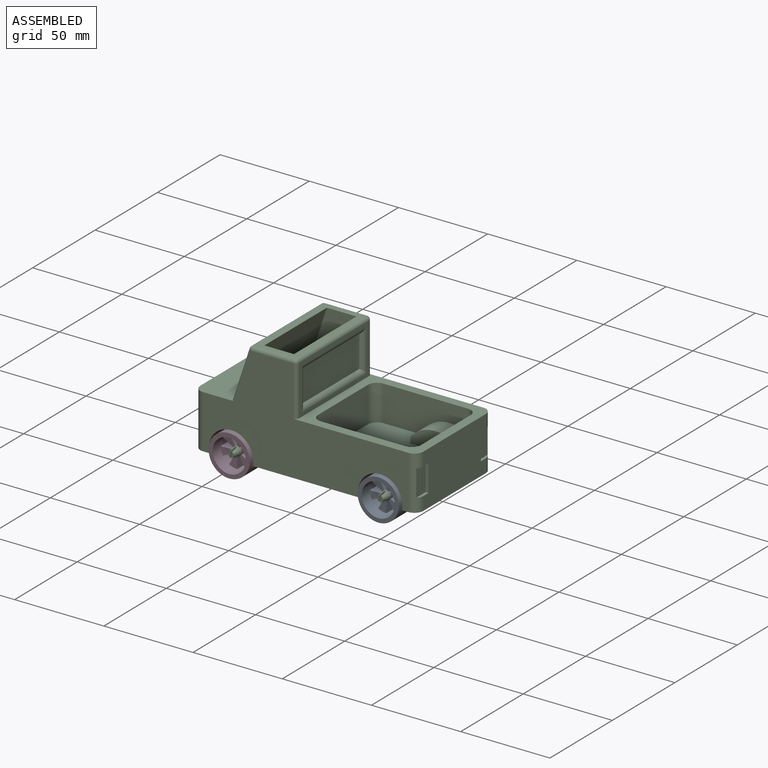
[diagram: assembled view]
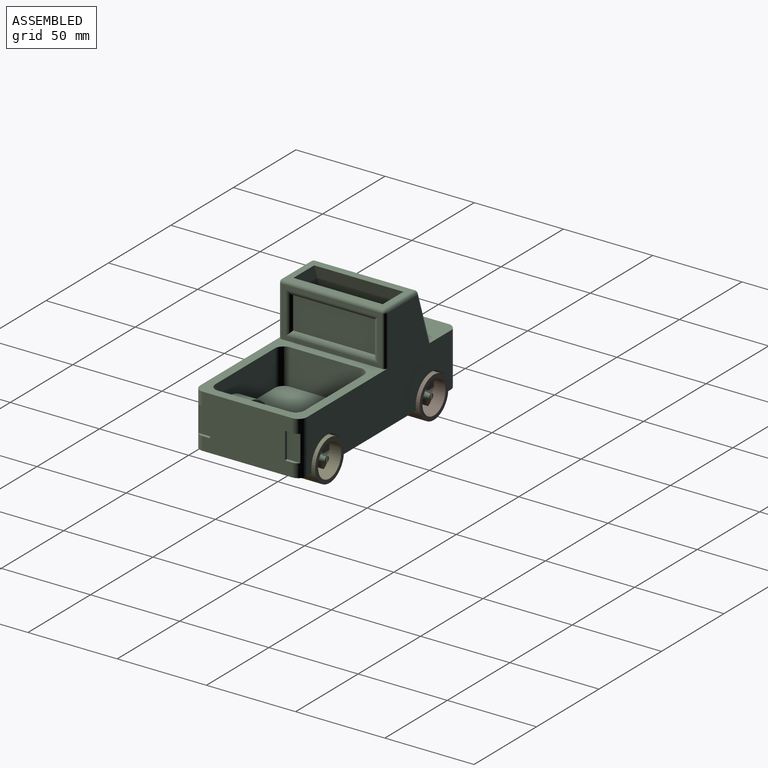
[diagram: assembled view, second angle]
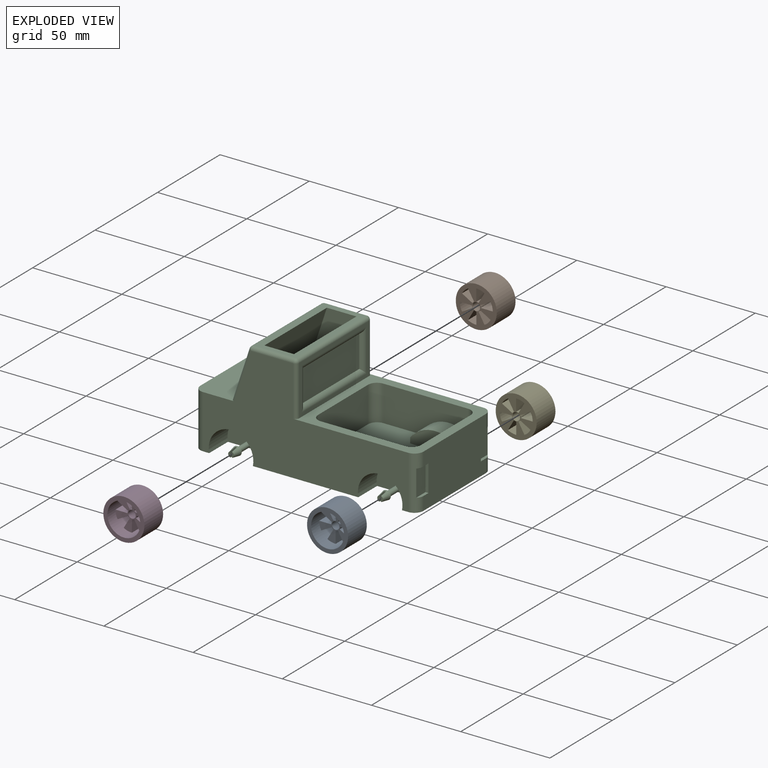
[diagram: exploded view]
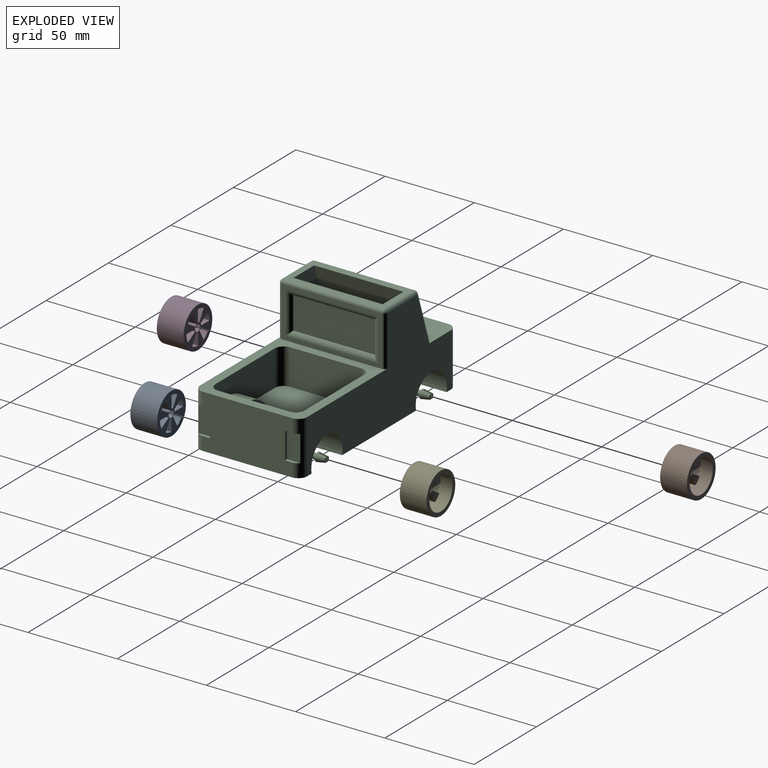
[diagram: exploded view, second angle]
ASSEMBLY  parts=5 mates=4
PART A: 25 faces, bbox 23x23x15 mm
  f0: cylinder r=11.5mm len=23mm, axis (0,0,-1), area 1083.8mm2, adj f2,f3
  f1: cylinder r=2.1mm len=8.25mm, axis (0,0,-1), area 108.9mm2, adj f22,f24
  f2: plane 23x23mm, normal (0,0,1), area 272.3mm2, adj f0,f4,f5,f6,f7,f8,f9,f10
  f3: plane 23x23mm, normal (0,0,-1), area 146.7mm2, adj f0,f23
  f4: cylinder r=2.5mm len=8.5mm, axis (0,0,1), area 11.2mm2, adj f2,f5,f6,f22
  f5: plane 8.5x6.75mm, normal (0,1,0), area 57.4mm2, adj f2,f4,f22,f23
  f6: plane 8.5x5.83mm, normal (0.5,-0.86,0), area 57.4mm2, adj f2,f4,f22,f23
  f7: cylinder r=2.5mm len=8.5mm, axis (0,0,1), area 11.2mm2, adj f2,f8,f9,f22
  f8: plane 8.5x5.85mm, normal (-0.87,0.5,0), area 57.4mm2, adj f2,f7,f22,f23
  f9: plane 8.5x6.75mm, normal (1,0.01,0), area 57.4mm2, adj f2,f7,f22,f23
  f10: cylinder r=2.5mm len=8.5mm, axis (0,0,1), area 11.2mm2, adj f2,f11,f12,f22
  f11: plane 8.5x5.85mm, normal (-0.87,-0.5,0), area 57.4mm2, adj f2,f10,f22,f23
  f12: plane 8.5x5.86mm, normal (0.5,0.87,0), area 57.4mm2, adj f2,f10,f22,f23
  f13: cylinder r=2.5mm len=8.5mm, axis (0,0,1), area 11.2mm2, adj f2,f14,f15,f22
  f14: plane 8.5x6.75mm, normal (0,-1,0), area 57.4mm2, adj f2,f13,f22,f23
  f15: plane 8.5x5.83mm, normal (-0.5,0.86,0), area 57.4mm2, adj f2,f13,f22,f23
  f16: cylinder r=2.5mm len=8.5mm, axis (0,0,1), area 11.2mm2, adj f2,f17,f18,f22
  f17: plane 8.5x5.85mm, normal (0.87,-0.5,0), area 57.4mm2, adj f2,f16,f22,f23
  f18: plane 8.5x6.75mm, normal (-1,-0.01,0), area 57.4mm2, adj f2,f16,f22,f23
  f19: cylinder r=2.5mm len=8.5mm, axis (0,0,1), area 11.2mm2, adj f2,f20,f21,f22
  f20: plane 8.5x5.85mm, normal (0.87,0.5,0), area 57.4mm2, adj f2,f19,f22,f23
  f21: plane 8.5x5.86mm, normal (-0.5,-0.87,0), area 57.4mm2, adj f2,f19,f22,f23
  f22: plane 18.5x18.5mm, normal (0,0,-1), area 129.2mm2, adj f1,f4,f5,f6,f7,f8,f9,f10
  f23: cylinder r=9.25mm len=18.5mm, axis (0,0,-1), area 627.2mm2, adj f2,f3,f5,f6,f8,f9,f11,f12
  f24: torus R=2.35mm, axis (0,0,-1), area 5.4mm2, adj f1,f2
PART B: 25 faces, bbox 23x23x15 mm
  f0: cylinder r=11.5mm len=23mm, axis (0,0,-1), area 1083.8mm2, adj f2,f3
  f1: cylinder r=2.1mm len=8.25mm, axis (0,0,-1), area 108.9mm2, adj f22,f24
  f2: plane 23x23mm, normal (0,0,1), area 272.3mm2, adj f0,f4,f5,f6,f7,f8,f9,f10
  f3: plane 23x23mm, normal (0,0,-1), area 146.7mm2, adj f0,f23
  f4: cylinder r=2.5mm len=8.5mm, axis (0,0,1), area 11.2mm2, adj f2,f5,f6,f22
  f5: plane 8.5x6.75mm, normal (0,1,0), area 57.4mm2, adj f2,f4,f22,f23
  f6: plane 8.5x5.83mm, normal (0.5,-0.86,0), area 57.4mm2, adj f2,f4,f22,f23
  f7: cylinder r=2.5mm len=8.5mm, axis (0,0,1), area 11.2mm2, adj f2,f8,f9,f22
  f8: plane 8.5x5.85mm, normal (-0.87,0.5,0), area 57.4mm2, adj f2,f7,f22,f23
  f9: plane 8.5x6.75mm, normal (1,0.01,0), area 57.4mm2, adj f2,f7,f22,f23
  f10: cylinder r=2.5mm len=8.5mm, axis (0,0,1), area 11.2mm2, adj f2,f11,f12,f22
  f11: plane 8.5x5.85mm, normal (-0.87,-0.5,0), area 57.4mm2, adj f2,f10,f22,f23
  f12: plane 8.5x5.86mm, normal (0.5,0.87,0), area 57.4mm2, adj f2,f10,f22,f23
  f13: cylinder r=2.5mm len=8.5mm, axis (0,0,1), area 11.2mm2, adj f2,f14,f15,f22
  f14: plane 8.5x6.75mm, normal (0,-1,0), area 57.4mm2, adj f2,f13,f22,f23
  f15: plane 8.5x5.83mm, normal (-0.5,0.86,0), area 57.4mm2, adj f2,f13,f22,f23
  f16: cylinder r=2.5mm len=8.5mm, axis (0,0,1), area 11.2mm2, adj f2,f17,f18,f22
  f17: plane 8.5x5.85mm, normal (0.87,-0.5,0), area 57.4mm2, adj f2,f16,f22,f23
  f18: plane 8.5x6.75mm, normal (-1,-0.01,0), area 57.4mm2, adj f2,f16,f22,f23
  f19: cylinder r=2.5mm len=8.5mm, axis (0,0,1), area 11.2mm2, adj f2,f20,f21,f22
  f20: plane 8.5x5.85mm, normal (0.87,0.5,0), area 57.4mm2, adj f2,f19,f22,f23
  f21: plane 8.5x5.86mm, normal (-0.5,-0.87,0), area 57.4mm2, adj f2,f19,f22,f23
  f22: plane 18.5x18.5mm, normal (0,0,-1), area 129.2mm2, adj f1,f4,f5,f6,f7,f8,f9,f10
  f23: cylinder r=9.25mm len=18.5mm, axis (0,0,-1), area 627.2mm2, adj f2,f3,f5,f6,f8,f9,f11,f12
  f24: torus R=2.35mm, axis (0,0,-1), area 5.4mm2, adj f1,f2
PART C: 126 faces, bbox 125.1x60.1x60.1 mm
  f0: plane 56x23.39mm, normal (0,0,1), area 481.5mm2, adj f64,f69,f70,f74,f120,f121,f124,f125
  f1: plane 50x30mm, normal (1,0,0), area 1380mm2, adj f2,f8,f11,f61,f112,f113,f114,f116
  f2: cylinder r=5mm len=30mm, axis (0,0,-1), area 176.5mm2, adj f1,f8,f11,f15,f112,f114,f115
  f3: plane 57.52x50mm, normal (0,0,1), area 2240.9mm2, adj f5,f7,f42,f43,f48,f50,f51,f52
  f4: cylinder r=12.5mm len=25mm, axis (0,1,0), area 664.6mm2, adj f8,f9,f47
  f5: plane 47.52x20mm, normal (0,-1,0), area 745.2mm2, adj f3,f11,f52,f54,f56,f59
  f6: cylinder r=12.5mm len=25mm, axis (0,-1,0), area 664.6mm2, adj f8,f15,f44
  f7: plane 47.52x20mm, normal (0,1,0), area 745.2mm2, adj f3,f11,f48,f49,f57,f58
  f8: plane 125x60mm, normal (0,0,-1), area 6008.8mm2, adj f1,f2,f4,f6,f9,f10,f15,f40
  f9: plane 115x58mm, normal (0,1,0), area 3619.7mm2, adj f4,f8,f11,f14,f45,f60,f61,f65
  f10: plane 50x30mm, normal (-1,0,0), area 1038.4mm2, adj f8,f14,f16,f18,f20,f21,f22,f23
  f11: plane 69.52x60mm, normal (0,0,1), area 1187.6mm2, adj f1,f2,f5,f7,f9,f12,f15,f42
  f12: plane 56x28mm, normal (1,0,0), area 346mm2, adj f11,f68,f71,f74,f76,f77,f78,f79
  f13: plane 56x28.63mm, normal (-0.95,0,0.31), area 608.7mm2, adj f14,f35,f36,f37,f38,f63,f64,f65
  f14: plane 60x22.82mm, normal (0,0,1), area 1233.9mm2, adj f9,f10,f13,f15,f60,f62,f63,f65
  f15: plane 115x58mm, normal (0,-1,0), area 3619.7mm2, adj f2,f6,f8,f11,f14,f40,f62,f63
  f16: cone r=5mm half-angle=3deg, axis (1,0,0), area 45.5mm2, adj f10,f17,f62
  f17: plane 10.16x10.16mm, normal (-1,0,0), area 81mm2, adj f16
  f18: cone r=5mm half-angle=3deg, axis (1,0,0), area 45.5mm2, adj f10,f19,f60
  f19: plane 10.16x10.16mm, normal (-1,0,0), area 81mm2, adj f18
  f20: plane 4.22x2mm, normal (0.05,1,0), area 8.2mm2, adj f10,f21,f23,f24
  f21: plane 27.38x2mm, normal (0.05,0,-1), area 54.6mm2, adj f10,f20,f22,f24
  f22: plane 4.22x2mm, normal (0.05,-1,0), area 8.2mm2, adj f10,f21,f23,f24
  f23: plane 27.38x2mm, normal (0.05,0,1), area 54.6mm2, adj f10,f20,f22,f24
  f24: plane 27.38x4.22mm, normal (-1,0,0), area 115.7mm2, adj f20,f21,f22,f23
  f25: plane 4.22x2mm, normal (0.05,1,0), area 8.2mm2, adj f10,f26,f28,f29
  f26: plane 27.38x2mm, normal (0.05,0,-1), area 54.6mm2, adj f10,f25,f27,f29
  f27: plane 4.22x2mm, normal (0.05,-1,0), area 8.2mm2, adj f10,f26,f28,f29
  f28: plane 27.38x2mm, normal (0.05,0,1), area 54.6mm2, adj f10,f25,f27,f29
  f29: plane 27.38x4.22mm, normal (-1,0,0), area 115.7mm2, adj f25,f26,f27,f28
  f30: plane 4.22x2mm, normal (0.05,1,0), area 8.2mm2, adj f10,f31,f33,f34
  f31: plane 27.38x2mm, normal (0.05,0,-1), area 54.6mm2, adj f10,f30,f32,f34
  f32: plane 4.22x2mm, normal (0.05,-1,0), area 8.2mm2, adj f10,f31,f33,f34
  f33: plane 27.38x2mm, normal (0.05,0,1), area 54.6mm2, adj f10,f30,f32,f34
  f34: plane 27.38x4.22mm, normal (-1,0,0), area 115.7mm2, adj f30,f31,f32,f33
  f35: plane 21.6x9.69mm, normal (0.05,-1,-0.02), area 65.4mm2, adj f13,f36,f38,f39
  f36: plane 50.31x2.8mm, normal (0.36,0,0.93), area 150.7mm2, adj f13,f35,f37,f39
  f37: plane 21.6x9.69mm, normal (0.05,1,-0.02), area 65.4mm2, adj f13,f36,f38,f39
  f38: plane 50.31x2.9mm, normal (-0.26,0,-0.96), area 150.7mm2, adj f13,f35,f37,f39
  f39: plane 50.31x20.81mm, normal (-0.95,0,0.31), area 1102.8mm2, adj f35,f36,f37,f38
  f40: cylinder r=12.5mm len=25mm, axis (0,-1,0), area 664.6mm2, adj f8,f15,f41
  f41: plane 25x15mm, normal (0,-1,0), area 300.4mm2, adj f8,f40,f90
  f42: plane 40x20mm, normal (1,0,0), area 800mm2, adj f3,f11,f56,f57
  f43: plane 40x20mm, normal (-1,0,0), area 800mm2, adj f3,f11,f58,f59
  f44: plane 25x15mm, normal (0,-1,0), area 300.4mm2, adj f6,f8,f82
  f45: cylinder r=12.5mm len=25mm, axis (0,1,0), area 664.6mm2, adj f8,f9,f46
  f46: plane 25x15mm, normal (0,1,0), area 300.4mm2, adj f8,f45,f106
  f47: plane 25x15mm, normal (0,1,0), area 300.4mm2, adj f4,f8,f98
  f48: plane 11x3mm, normal (-1,0,0), area 33mm2, adj f3,f7,f49,f51
  f49: cylinder r=17.5mm len=28mm, axis (0,-1,0), area 355.1mm2, adj f7,f48,f50,f51,f58
  f50: plane 9.77x3mm, normal (1,0,0), area 29.3mm2, adj f3,f49,f51,f58
  f51: plane 28x10mm, normal (0,1,0), area 221mm2, adj f3,f48,f49,f50
  f52: plane 11x3mm, normal (-1,0,0), area 33mm2, adj f3,f5,f54,f55
  f53: plane 9.77x3mm, normal (1,0,0), area 29.3mm2, adj f3,f54,f55,f59
  f54: cylinder r=17.5mm len=28mm, axis (0,1,0), area 355.1mm2, adj f5,f52,f53,f55,f59
  f55: plane 28x10mm, normal (0,-1,0), area 221mm2, adj f3,f52,f53,f54
  f56: cylinder r=5mm len=20mm, axis (0,0,-1), area 157.1mm2, adj f3,f5,f11,f42
  f57: cylinder r=5mm len=20mm, axis (0,0,-1), area 157.1mm2, adj f3,f7,f11,f42
  f58: cylinder r=5mm len=20mm, axis (0,0,-1), area 140.3mm2, adj f3,f7,f11,f43,f49,f50
  f59: cylinder r=5mm len=20mm, axis (0,0,-1), area 140.3mm2, adj f3,f5,f11,f43,f53,f54
  f60: cylinder r=5mm len=30mm, axis (0,0,-1), area 223.9mm2, adj f8,f9,f10,f14,f18
  f61: cylinder r=5mm len=30mm, axis (0,0,1), area 176.5mm2, adj f1,f8,f9,f11,f116,f117,f119
  f62: cylinder r=5mm len=30mm, axis (0,0,1), area 223.9mm2, adj f8,f10,f14,f15,f16
  f63: cylinder r=2mm len=29.26mm, axis (0.31,0,0.95), area 94mm2, adj f13,f14,f15,f66
  f64: cylinder r=2mm len=56mm, axis (0,1,0), area 140.1mm2, adj f0,f13,f66,f67
  f65: cylinder r=2mm len=29.26mm, axis (-0.31,0,-0.95), area 94mm2, adj f9,f13,f14,f67
  f66: sphere r=2mm, area 5mm2, adj f63,f64,f69
  f67: sphere r=2mm, area 5mm2, adj f64,f65,f70
  f68: cylinder r=2mm len=28mm, axis (0,0,-1), area 88mm2, adj f11,f12,f15,f72
  f69: cylinder r=2mm len=23.39mm, axis (1,0,0), area 73.5mm2, adj f0,f15,f66,f72
  f70: cylinder r=2mm len=23.39mm, axis (-1,0,0), area 73.5mm2, adj f0,f9,f67,f73
  f71: cylinder r=2mm len=28mm, axis (0,0,1), area 88mm2, adj f9,f11,f12,f73
  f72: sphere r=2mm, area 6.3mm2, adj f68,f69,f74
  f73: sphere r=2mm, area 6.3mm2, adj f70,f71,f74
  f74: cylinder r=2mm len=56mm, axis (0,1,0), area 175.9mm2, adj f0,f12,f72,f73
  f75: plane 46x18mm, normal (1,0,0), area 828mm2, adj f76,f77,f78,f79
  f76: cylinder r=3mm len=51.66mm, axis (0,1,0), area 178.8mm2, adj f12,f75,f77,f78
  f77: cylinder r=3mm len=23.66mm, axis (0,0,1), area 75.4mm2, adj f12,f75,f76,f79
  f78: cylinder r=3mm len=23.66mm, axis (0,0,-1), area 75.4mm2, adj f12,f75,f76,f79
  f79: cylinder r=3mm len=51.66mm, axis (0,-1,0), area 178.8mm2, adj f12,f75,f77,f78
  f80: cone r=2.5mm half-angle=10deg, axis (0,1,0), area 57.3mm2, adj f81,f83,f84,f85,f86,f87
  f81: plane 3.08x1.12mm, normal (0,-1,0), area 2.5mm2, adj f80,f86
  f82: cylinder r=1.5mm len=10mm, axis (0,1,0), area 94.2mm2, adj f44,f84
  f83: plane 3.08x1.12mm, normal (0,-1,0), area 2.5mm2, adj f80,f87
  f84: plane 5x5mm, normal (0,1,0), area 12.6mm2, adj f80,f82
  f85: plane 4.65x1mm, normal (0,-1,0), area 4.6mm2, adj f80,f86,f87
  f86: plane 4.57x4.04mm, normal (-1,0,0), area 15.2mm2, adj f80,f81,f85
  f87: plane 4.57x4.04mm, normal (1,0,0), area 15.2mm2, adj f80,f83,f85
  f88: cone r=2.5mm half-angle=10deg, axis (0,1,0), area 57.3mm2, adj f89,f91,f92,f93,f94,f95
  f89: plane 3.08x1.12mm, normal (0,-1,0), area 2.5mm2, adj f88,f94
  f90: cylinder r=1.5mm len=10mm, axis (0,1,0), area 94.2mm2, adj f41,f92
  f91: plane 3.08x1.12mm, normal (0,-1,0), area 2.5mm2, adj f88,f95
  f92: plane 5x5mm, normal (0,1,0), area 12.6mm2, adj f88,f90
  f93: plane 4.65x1mm, normal (0,-1,0), area 4.6mm2, adj f88,f94,f95
  f94: plane 4.57x4.04mm, normal (1,0,0), area 15.2mm2, adj f88,f89,f93
  f95: plane 4.57x4.04mm, normal (-1,0,0), area 15.2mm2, adj f88,f91,f93
  f96: cone r=2.5mm half-angle=10deg, axis (0,-1,0), area 57.3mm2, adj f97,f99,f100,f101,f102,f103
  f97: plane 3.08x1.12mm, normal (0,1,0), area 2.5mm2, adj f96,f102
  f98: cylinder r=1.5mm len=10mm, axis (0,-1,0), area 94.2mm2, adj f47,f100
  f99: plane 3.08x1.12mm, normal (0,1,0), area 2.5mm2, adj f96,f103
  f100: plane 5x5mm, normal (0,-1,0), area 12.6mm2, adj f96,f98
  f101: plane 4.65x1mm, normal (0,1,0), area 4.6mm2, adj f96,f102,f103
  f102: plane 4.57x4.04mm, normal (-1,0,0), area 15.2mm2, adj f96,f97,f101
  f103: plane 4.57x4.04mm, normal (1,0,0), area 15.2mm2, adj f96,f99,f101
  f104: cone r=2.5mm half-angle=10deg, axis (0,-1,0), area 57.3mm2, adj f105,f107,f108,f109,f110,f111
  f105: plane 3.08x1.12mm, normal (0,1,0), area 2.5mm2, adj f104,f110
  f106: cylinder r=1.5mm len=10mm, axis (0,-1,0), area 94.2mm2, adj f46,f108
  f107: plane 3.08x1.12mm, normal (0,1,0), area 2.5mm2, adj f104,f111
  f108: plane 5x5mm, normal (0,-1,0), area 12.6mm2, adj f104,f106
  f109: plane 4.65x1mm, normal (0,1,0), area 4.6mm2, adj f104,f110,f111
  f110: plane 4.57x4.04mm, normal (1,0,0), area 15.2mm2, adj f104,f105,f109
  f111: plane 4.57x4.04mm, normal (-1,0,0), area 15.2mm2, adj f104,f107,f109
  f112: plane 7.63x1.56mm, normal (0.09,0,1), area 9.6mm2, adj f1,f2,f113,f115
  f113: plane 15x1.5mm, normal (0.09,-1,0), area 22.4mm2, adj f1,f112,f114,f115
  f114: plane 7.63x1.56mm, normal (0.09,0,-1), area 9.6mm2, adj f1,f2,f113,f115
  f115: plane 14.74x7.44mm, normal (1,0,0), area 109.6mm2, adj f2,f112,f113,f114
  f116: plane 7.63x1.56mm, normal (0.09,0,1), area 9.6mm2, adj f1,f61,f118,f119
  f117: plane 7.63x1.56mm, normal (0.09,0,-1), area 9.6mm2, adj f1,f61,f118,f119
  f118: plane 15x1.5mm, normal (0.09,1,0), area 22.4mm2, adj f1,f116,f117,f119
  f119: plane 14.74x7.44mm, normal (1,0,0), area 109.6mm2, adj f61,f116,f117,f118
  f120: plane 50x42mm, normal (-1,0,0), area 2100mm2, adj f0,f123,f124,f125
  f121: plane 50x30mm, normal (0.95,0,-0.31), area 1580.2mm2, adj f0,f122,f124,f125
  f122: plane 50x12mm, normal (1,0,0), area 600mm2, adj f121,f123,f124,f125
  f123: plane 50x26.5mm, normal (0,0,1), area 1325.1mm2, adj f120,f122,f124,f125
  f124: plane 42x26.5mm, normal (0,-1,0), area 964.1mm2, adj f0,f120,f121,f122,f123
  f125: plane 42x26.5mm, normal (0,1,0), area 964.1mm2, adj f0,f120,f121,f122,f123
PART D: 25 faces, bbox 23x23x15 mm
  f0: cylinder r=11.5mm len=23mm, axis (0,0,-1), area 1083.8mm2, adj f2,f3
  f1: cylinder r=2.1mm len=8.25mm, axis (0,0,-1), area 108.9mm2, adj f22,f24
  f2: plane 23x23mm, normal (0,0,1), area 272.3mm2, adj f0,f4,f5,f6,f7,f8,f9,f10
  f3: plane 23x23mm, normal (0,0,-1), area 146.7mm2, adj f0,f23
  f4: cylinder r=2.5mm len=8.5mm, axis (0,0,1), area 11.2mm2, adj f2,f5,f6,f22
  f5: plane 8.5x6.75mm, normal (0,1,0), area 57.4mm2, adj f2,f4,f22,f23
  f6: plane 8.5x5.83mm, normal (0.5,-0.86,0), area 57.4mm2, adj f2,f4,f22,f23
  f7: cylinder r=2.5mm len=8.5mm, axis (0,0,1), area 11.2mm2, adj f2,f8,f9,f22
  f8: plane 8.5x5.85mm, normal (-0.87,0.5,0), area 57.4mm2, adj f2,f7,f22,f23
  f9: plane 8.5x6.75mm, normal (1,0.01,0), area 57.4mm2, adj f2,f7,f22,f23
  f10: cylinder r=2.5mm len=8.5mm, axis (0,0,1), area 11.2mm2, adj f2,f11,f12,f22
  f11: plane 8.5x5.85mm, normal (-0.87,-0.5,0), area 57.4mm2, adj f2,f10,f22,f23
  f12: plane 8.5x5.86mm, normal (0.5,0.87,0), area 57.4mm2, adj f2,f10,f22,f23
  f13: cylinder r=2.5mm len=8.5mm, axis (0,0,1), area 11.2mm2, adj f2,f14,f15,f22
  f14: plane 8.5x6.75mm, normal (0,-1,0), area 57.4mm2, adj f2,f13,f22,f23
  f15: plane 8.5x5.83mm, normal (-0.5,0.86,0), area 57.4mm2, adj f2,f13,f22,f23
  f16: cylinder r=2.5mm len=8.5mm, axis (0,0,1), area 11.2mm2, adj f2,f17,f18,f22
  f17: plane 8.5x5.85mm, normal (0.87,-0.5,0), area 57.4mm2, adj f2,f16,f22,f23
  f18: plane 8.5x6.75mm, normal (-1,-0.01,0), area 57.4mm2, adj f2,f16,f22,f23
  f19: cylinder r=2.5mm len=8.5mm, axis (0,0,1), area 11.2mm2, adj f2,f20,f21,f22
  f20: plane 8.5x5.85mm, normal (0.87,0.5,0), area 57.4mm2, adj f2,f19,f22,f23
  f21: plane 8.5x5.86mm, normal (-0.5,-0.87,0), area 57.4mm2, adj f2,f19,f22,f23
  f22: plane 18.5x18.5mm, normal (0,0,-1), area 129.2mm2, adj f1,f4,f5,f6,f7,f8,f9,f10
  f23: cylinder r=9.25mm len=18.5mm, axis (0,0,-1), area 627.2mm2, adj f2,f3,f5,f6,f8,f9,f11,f12
  f24: torus R=2.35mm, axis (0,0,-1), area 5.4mm2, adj f1,f2
PART E: 25 faces, bbox 23x23x15 mm
  f0: cylinder r=11.5mm len=23mm, axis (0,0,-1), area 1083.8mm2, adj f2,f3
  f1: cylinder r=2.1mm len=8.25mm, axis (0,0,-1), area 108.9mm2, adj f22,f24
  f2: plane 23x23mm, normal (0,0,1), area 272.3mm2, adj f0,f4,f5,f6,f7,f8,f9,f10
  f3: plane 23x23mm, normal (0,0,-1), area 146.7mm2, adj f0,f23
  f4: cylinder r=2.5mm len=8.5mm, axis (0,0,1), area 11.2mm2, adj f2,f5,f6,f22
  f5: plane 8.5x6.75mm, normal (0,1,0), area 57.4mm2, adj f2,f4,f22,f23
  f6: plane 8.5x5.83mm, normal (0.5,-0.86,0), area 57.4mm2, adj f2,f4,f22,f23
  f7: cylinder r=2.5mm len=8.5mm, axis (0,0,1), area 11.2mm2, adj f2,f8,f9,f22
  f8: plane 8.5x5.85mm, normal (-0.87,0.5,0), area 57.4mm2, adj f2,f7,f22,f23
  f9: plane 8.5x6.75mm, normal (1,0.01,0), area 57.4mm2, adj f2,f7,f22,f23
  f10: cylinder r=2.5mm len=8.5mm, axis (0,0,1), area 11.2mm2, adj f2,f11,f12,f22
  f11: plane 8.5x5.85mm, normal (-0.87,-0.5,0), area 57.4mm2, adj f2,f10,f22,f23
  f12: plane 8.5x5.86mm, normal (0.5,0.87,0), area 57.4mm2, adj f2,f10,f22,f23
  f13: cylinder r=2.5mm len=8.5mm, axis (0,0,1), area 11.2mm2, adj f2,f14,f15,f22
  f14: plane 8.5x6.75mm, normal (0,-1,0), area 57.4mm2, adj f2,f13,f22,f23
  f15: plane 8.5x5.83mm, normal (-0.5,0.86,0), area 57.4mm2, adj f2,f13,f22,f23
  f16: cylinder r=2.5mm len=8.5mm, axis (0,0,1), area 11.2mm2, adj f2,f17,f18,f22
  f17: plane 8.5x5.85mm, normal (0.87,-0.5,0), area 57.4mm2, adj f2,f16,f22,f23
  f18: plane 8.5x6.75mm, normal (-1,-0.01,0), area 57.4mm2, adj f2,f16,f22,f23
  f19: cylinder r=2.5mm len=8.5mm, axis (0,0,1), area 11.2mm2, adj f2,f20,f21,f22
  f20: plane 8.5x5.85mm, normal (0.87,0.5,0), area 57.4mm2, adj f2,f19,f22,f23
  f21: plane 8.5x5.86mm, normal (-0.5,-0.87,0), area 57.4mm2, adj f2,f19,f22,f23
  f22: plane 18.5x18.5mm, normal (0,0,-1), area 129.2mm2, adj f1,f4,f5,f6,f7,f8,f9,f10
  f23: cylinder r=9.25mm len=18.5mm, axis (0,0,-1), area 627.2mm2, adj f2,f3,f5,f6,f8,f9,f11,f12
  f24: torus R=2.35mm, axis (0,0,-1), area 5.4mm2, adj f1,f2
PLACE A rot(axis=(-1,0,0),90deg) t=(68.32,-9.84,-128.3)mm
PLACE B rot(axis=(1,0,0),90deg) t=(-75.25,-6.84,52.15)mm
PLACE C t=(-0.11,21.66,-10.57)mm fixed
PLACE D rot(axis=(-1,0,0),90deg) t=(14.75,-9.84,-128.3)mm
PLACE E rot(axis=(1,0,0),90deg) t=(38.32,-6.84,52.15)mm
MATE revolute E.f23 <-> C.f4  axis (0,1,0) through (41.67,16.66,-38.07)mm
MATE revolute D.f23 <-> C.f40  axis (0,-1,0) through (-41.9,-33.34,-38.07)mm
MATE revolute B.f23 <-> C.f40  axis (0,1,0) through (-41.9,16.66,-38.07)mm
MATE revolute A.f23 <-> C.f4  axis (0,-1,0) through (41.67,-33.34,-38.07)mm
